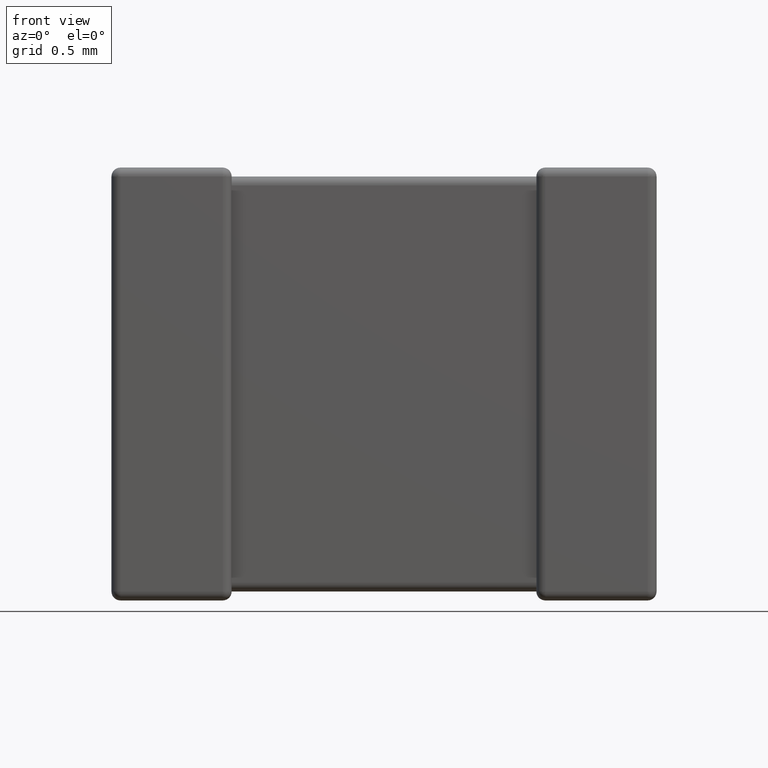
[diagram: clean part render]
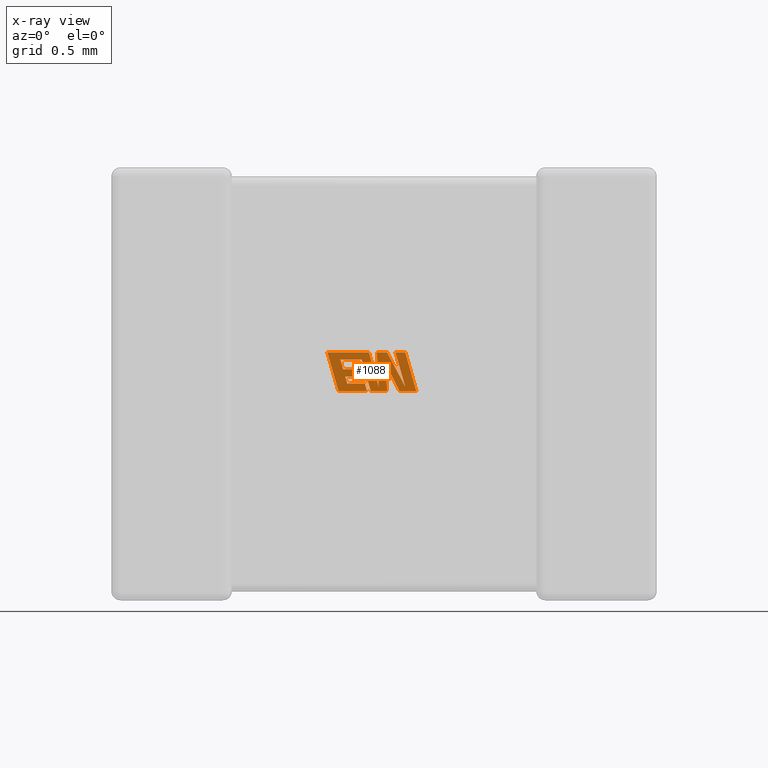
[diagram: x-ray — body ghosted, one internal face saturated and labeled with its STEP entity id]
A machine part, front view, then the same camera in x-ray: the body is ghosted and one INTERNAL B-rep face — a face not visible from any outside direction — is saturated and labeled: STEP entity #1088.
In plain terms, the highlighted planar face has unit normal (0, -1, 0).
Its self-contained STEP definition (entity closure, byte-faithful):
#14 = LINE ( 'NONE', #2497, #1206 ) ;
#46 = CARTESIAN_POINT ( 'NONE',  ( 1.719810770062254900, 1.343840000000000100, -1.393777468605939400 ) ) ;
#58 = CARTESIAN_POINT ( 'NONE',  ( 1.667068680722454400, 1.343840000000000100, -1.367376504979233200 ) ) ;
#102 = VECTOR ( 'NONE', #748, 1000.000000000000000 ) ;
#111 = DIRECTION ( 'NONE',  ( -0.05596501978068185000, 0.0000000000000000000, 0.9984327301130245800 ) ) ;
#140 = VECTOR ( 'NONE', #1395, 1000.000000000000000 ) ;
#141 = ORIENTED_EDGE ( 'NONE', *, *, #1545, .F. ) ;
#168 = DIRECTION ( 'NONE',  ( 1.000000000000000000, 0.0000000000000000000, 0.0000000000000000000 ) ) ;
#179 = EDGE_CURVE ( 'NONE', #3529, #4502, #1664, .T. ) ;
#217 = VERTEX_POINT ( 'NONE', #3510 ) ;
#225 = CARTESIAN_POINT ( 'NONE',  ( 1.719205590769774700, 1.343840000000000100, -1.153170000000000000 ) ) ;
#232 = CARTESIAN_POINT ( 'NONE',  ( 1.427963170861977500, 1.343840000000000100, -1.198945716855293900 ) ) ;
#253 = VECTOR ( 'NONE', #1440, 1000.000000000000000 ) ;
#301 = CARTESIAN_POINT ( 'NONE',  ( 1.832830620914688500, 1.343840000000000100, -1.368408049820770500 ) ) ;
#335 = EDGE_CURVE ( 'NONE', #4195, #217, #1116, .T. ) ;
#339 = EDGE_CURVE ( 'NONE', #1463, #860, #3627, .T. ) ;
#364 = VECTOR ( 'NONE', #4438, 1000.000000000000000 ) ;
#376 = ORIENTED_EDGE ( 'NONE', *, *, #4514, .F. ) ;
#408 = CARTESIAN_POINT ( 'NONE',  ( 1.901339830266763900, 1.343840000000000100, -1.393777468605939400 ) ) ;
#443 = ORIENTED_EDGE ( 'NONE', *, *, #2124, .F. ) ;
#448 = ORIENTED_EDGE ( 'NONE', *, *, #930, .F. ) ;
#480 = CARTESIAN_POINT ( 'NONE',  ( 1.445001950557935200, 1.343840000000000100, -1.258746054009087600 ) ) ;
#498 = ORIENTED_EDGE ( 'NONE', *, *, #1322, .F. ) ;
#507 = VECTOR ( 'NONE', #4196, 1000.000000000000200 ) ;
#522 = VERTEX_POINT ( 'NONE', #1533 ) ;
#537 = ORIENTED_EDGE ( 'NONE', *, *, #335, .F. ) ;
#556 = ORIENTED_EDGE ( 'NONE', *, *, #4179, .F. ) ;
#560 = LINE ( 'NONE', #595, #1511 ) ;
#564 = VERTEX_POINT ( 'NONE', #2208 ) ;
#565 = EDGE_CURVE ( 'NONE', #871, #2762, #4482, .T. ) ;
#595 = CARTESIAN_POINT ( 'NONE',  ( 1.605563734006848000, 1.343840000000000100, -1.153170000000000000 ) ) ;
#606 = CARTESIAN_POINT ( 'NONE',  ( 1.580337707463669100, 1.343840000000000100, -1.347979072396408500 ) ) ;
#658 = CARTESIAN_POINT ( 'NONE',  ( 1.548258857652406300, 1.343840000000000100, -1.258746054009087600 ) ) ;
#665 = LINE ( 'NONE', #3379, #4599 ) ;
#680 = CARTESIAN_POINT ( 'NONE',  ( 1.605563734006848000, 1.343840000000000100, -1.153170000000000000 ) ) ;
#699 = EDGE_CURVE ( 'NONE', #1910, #871, #4534, .T. ) ;
#745 = DIRECTION ( 'NONE',  ( -0.2762517575166416100, 0.0000000000000000000, 0.9610853065513833600 ) ) ;
#748 = DIRECTION ( 'NONE',  ( -1.000000000000000000, 0.0000000000000000000, 0.0000000000000000000 ) ) ;
#757 = ORIENTED_EDGE ( 'NONE', *, *, #3171, .F. ) ;
#818 = DIRECTION ( 'NONE',  ( 0.2732148821746424000, 0.0000000000000000000, -0.9619530280415443700 ) ) ;
#860 = VERTEX_POINT ( 'NONE', #3127 ) ;
#871 = VERTEX_POINT ( 'NONE', #4243 ) ;
#930 = EDGE_CURVE ( 'NONE', #951, #1783, #4279, .T. ) ;
#934 = DIRECTION ( 'NONE',  ( 0.2746459304917039400, 0.0000000000000000000, -0.9615454294334439000 ) ) ;
#951 = VERTEX_POINT ( 'NONE', #3173 ) ;
#981 = VERTEX_POINT ( 'NONE', #3204 ) ;
#995 = VERTEX_POINT ( 'NONE', #2463 ) ;
#1088 = ADVANCED_FACE ( 'NONE', ( #2949 ), #2883, .T. ) ;
#1107 = LINE ( 'NONE', #2320, #2056 ) ;
#1116 = LINE ( 'NONE', #1762, #140 ) ;
#1131 = CARTESIAN_POINT ( 'NONE',  ( 1.655061791398066800, 1.343840000000000100, -1.153170000000000000 ) ) ;
#1140 = CARTESIAN_POINT ( 'NONE',  ( 1.795811030974152000, 1.343840000000000100, -1.393777468605939400 ) ) ;
#1206 = VECTOR ( 'NONE', #745, 1000.000000000000100 ) ;
#1287 = ORIENTED_EDGE ( 'NONE', *, *, #1866, .F. ) ;
#1291 = LINE ( 'NONE', #3759, #2736 ) ;
#1322 = EDGE_CURVE ( 'NONE', #4502, #995, #1107, .T. ) ;
#1383 = DIRECTION ( 'NONE',  ( 0.2793947940878429000, 0.0000000000000000000, -0.9601763114327556100 ) ) ;
#1395 = DIRECTION ( 'NONE',  ( -1.000000000000000000, 0.0000000000000000000, 0.0000000000000000000 ) ) ;
#1406 = VECTOR ( 'NONE', #1600, 1000.000000000000000 ) ;
#1427 = DIRECTION ( 'NONE',  ( 0.05375259206908434400, 0.0000000000000000000, -0.9985542843760946100 ) ) ;
#1440 = DIRECTION ( 'NONE',  ( 1.000000000000000000, 0.0000000000000000000, 0.0000000000000000000 ) ) ;
#1448 = ORIENTED_EDGE ( 'NONE', *, *, #2842, .F. ) ;
#1463 = VERTEX_POINT ( 'NONE', #3227 ) ;
#1497 = DIRECTION ( 'NONE',  ( 0.4668459304955247000, 0.0000000000000000000, -0.8843386665637592600 ) ) ;
#1500 = VERTEX_POINT ( 'NONE', #2127 ) ;
#1511 = VECTOR ( 'NONE', #4181, 1000.000000000000100 ) ;
#1533 = CARTESIAN_POINT ( 'NONE',  ( 1.771021331891165800, 1.343840000000000100, -1.153170000000000000 ) ) ;
#1543 = CARTESIAN_POINT ( 'NONE',  ( 1.667068680722454400, 1.343840000000000100, -1.367376504979233200 ) ) ;
#1545 = EDGE_CURVE ( 'NONE', #217, #564, #14, .T. ) ;
#1593 = VECTOR ( 'NONE', #1497, 1000.000000000000000 ) ;
#1600 = DIRECTION ( 'NONE',  ( 1.000000000000000000, 0.0000000000000000000, 0.0000000000000000000 ) ) ;
#1617 = LINE ( 'NONE', #3550, #4156 ) ;
#1627 = CARTESIAN_POINT ( 'NONE',  ( 1.593345414762694200, 1.343840000000000100, -1.393777468605939400 ) ) ;
#1654 = ORIENTED_EDGE ( 'NONE', *, *, #3311, .F. ) ;
#1664 = LINE ( 'NONE', #480, #1406 ) ;
#1670 = CARTESIAN_POINT ( 'NONE',  ( 1.832163408931786000, 1.343840000000000100, -1.153170000000000000 ) ) ;
#1680 = DIRECTION ( 'NONE',  ( 0.2740217765953990600, 0.0000000000000000000, -0.9617234872620618000 ) ) ;
#1711 = CARTESIAN_POINT ( 'NONE',  ( 1.457692146891389700, 1.343840000000000100, -1.303226121278632900 ) ) ;
#1730 = ORIENTED_EDGE ( 'NONE', *, *, #699, .F. ) ;
#1762 = CARTESIAN_POINT ( 'NONE',  ( 1.719810770062254900, 1.343840000000000100, -1.393777468605939400 ) ) ;
#1772 = AXIS2_PLACEMENT_3D ( 'NONE', #1813, #2191, #1859 ) ;
#1783 = VERTEX_POINT ( 'NONE', #2630 ) ;
#1813 = CARTESIAN_POINT ( 'NONE',  ( -0.0002255481140239681100, 1.343839999999999700, -0.3440333437732227600 ) ) ;
#1859 = DIRECTION ( 'NONE',  ( 0.0000000000000000000, 0.0000000000000000000, -1.000000000000000000 ) ) ;
#1866 = EDGE_CURVE ( 'NONE', #522, #3994, #2928, .T. ) ;
#1910 = VERTEX_POINT ( 'NONE', #408 ) ;
#1991 = EDGE_CURVE ( 'NONE', #2622, #3505, #2103, .T. ) ;
#2016 = LINE ( 'NONE', #1131, #3355 ) ;
#2056 = VECTOR ( 'NONE', #934, 1000.000000000000100 ) ;
#2099 = VECTOR ( 'NONE', #3700, 1000.000000000000000 ) ;
#2103 = LINE ( 'NONE', #2545, #1593 ) ;
#2124 = EDGE_CURVE ( 'NONE', #995, #1463, #4062, .T. ) ;
#2127 = CARTESIAN_POINT ( 'NONE',  ( 1.655061791398066800, 1.343840000000000100, -1.153170000000000000 ) ) ;
#2185 = VERTEX_POINT ( 'NONE', #606 ) ;
#2191 = DIRECTION ( 'NONE',  ( 0.0000000000000000000, -1.000000000000000000, 0.0000000000000000000 ) ) ;
#2208 = CARTESIAN_POINT ( 'NONE',  ( 1.561342650527707900, 1.343840000000000100, -1.198945716855293900 ) ) ;
#2215 = CARTESIAN_POINT ( 'NONE',  ( 1.580337707463669100, 1.343840000000000100, -1.347979072396408500 ) ) ;
#2320 = CARTESIAN_POINT ( 'NONE',  ( 1.548258857652406300, 1.343840000000000100, -1.258746054009087600 ) ) ;
#2387 = VERTEX_POINT ( 'NONE', #4516 ) ;
#2428 = EDGE_CURVE ( 'NONE', #981, #951, #3758, .T. ) ;
#2432 = CARTESIAN_POINT ( 'NONE',  ( 1.445001950557935200, 1.343840000000000100, -1.258746054009087600 ) ) ;
#2459 = VECTOR ( 'NONE', #2501, 1000.000000000000000 ) ;
#2463 = CARTESIAN_POINT ( 'NONE',  ( 1.560963685827582600, 1.343840000000000100, -1.303226121278632900 ) ) ;
#2481 = LINE ( 'NONE', #1670, #507 ) ;
#2490 = ORIENTED_EDGE ( 'NONE', *, *, #3797, .F. ) ;
#2497 = CARTESIAN_POINT ( 'NONE',  ( 1.617344561569602300, 1.343840000000000100, -1.393777468605939400 ) ) ;
#2501 = DIRECTION ( 'NONE',  ( -0.2765379750249969400, 0.0000000000000000000, 0.9610029908221275900 ) ) ;
#2504 = LINE ( 'NONE', #1543, #4144 ) ;
#2520 = DIRECTION ( 'NONE',  ( 1.000000000000000000, 0.0000000000000000000, 0.0000000000000000000 ) ) ;
#2545 = CARTESIAN_POINT ( 'NONE',  ( 1.719205590769774700, 1.343840000000000100, -1.153170000000000000 ) ) ;
#2590 = EDGE_CURVE ( 'NONE', #3994, #1910, #2481, .T. ) ;
#2622 = VERTEX_POINT ( 'NONE', #225 ) ;
#2625 = DIRECTION ( 'NONE',  ( -1.000000000000000000, 0.0000000000000000000, 0.0000000000000000000 ) ) ;
#2630 = CARTESIAN_POINT ( 'NONE',  ( 1.346355536600579700, 1.343840000000000100, -1.153169999999999600 ) ) ;
#2736 = VECTOR ( 'NONE', #3818, 1000.000000000000100 ) ;
#2762 = VERTEX_POINT ( 'NONE', #3937 ) ;
#2765 = ORIENTED_EDGE ( 'NONE', *, *, #4015, .F. ) ;
#2784 = ORIENTED_EDGE ( 'NONE', *, *, #2590, .F. ) ;
#2842 = EDGE_CURVE ( 'NONE', #564, #2387, #3931, .T. ) ;
#2872 = CARTESIAN_POINT ( 'NONE',  ( 1.561342650527707900, 1.343840000000000100, -1.198945716855293900 ) ) ;
#2882 = ORIENTED_EDGE ( 'NONE', *, *, #179, .F. ) ;
#2883 = PLANE ( 'NONE',  #1772 ) ;
#2928 = LINE ( 'NONE', #3934, #3716 ) ;
#2949 = FACE_OUTER_BOUND ( 'NONE', #3742, .T. ) ;
#2952 = VECTOR ( 'NONE', #818, 1000.000000000000000 ) ;
#3119 = CARTESIAN_POINT ( 'NONE',  ( 1.832163408931786000, 1.343840000000000100, -1.153170000000000000 ) ) ;
#3127 = CARTESIAN_POINT ( 'NONE',  ( 1.470714486032121300, 1.343840000000000100, -1.347979072396408500 ) ) ;
#3171 = EDGE_CURVE ( 'NONE', #4446, #4159, #560, .T. ) ;
#3173 = CARTESIAN_POINT ( 'NONE',  ( 1.415592680271959200, 1.343840000000000100, -1.393777468605939400 ) ) ;
#3204 = CARTESIAN_POINT ( 'NONE',  ( 1.593345414762694200, 1.343840000000000100, -1.393777468605939400 ) ) ;
#3227 = CARTESIAN_POINT ( 'NONE',  ( 1.457692146891389700, 1.343840000000000100, -1.303226121278632900 ) ) ;
#3269 = ORIENTED_EDGE ( 'NONE', *, *, #3551, .F. ) ;
#3293 = LINE ( 'NONE', #232, #3350 ) ;
#3311 = EDGE_CURVE ( 'NONE', #3505, #522, #1291, .T. ) ;
#3339 = LINE ( 'NONE', #4310, #253 ) ;
#3341 = EDGE_CURVE ( 'NONE', #2387, #3529, #3293, .T. ) ;
#3350 = VECTOR ( 'NONE', #1680, 1000.000000000000200 ) ;
#3355 = VECTOR ( 'NONE', #168, 1000.000000000000000 ) ;
#3372 = VECTOR ( 'NONE', #2625, 1000.000000000000000 ) ;
#3379 = CARTESIAN_POINT ( 'NONE',  ( 1.562736333260703800, 1.343840000000000100, -1.153169999999999600 ) ) ;
#3505 = VERTEX_POINT ( 'NONE', #301 ) ;
#3510 = CARTESIAN_POINT ( 'NONE',  ( 1.617344561569602300, 1.343840000000000100, -1.393777468605939400 ) ) ;
#3529 = VERTEX_POINT ( 'NONE', #2432 ) ;
#3548 = CARTESIAN_POINT ( 'NONE',  ( 1.415592680271959200, 1.343840000000000100, -1.393777468605939400 ) ) ;
#3550 = CARTESIAN_POINT ( 'NONE',  ( 1.710557694836944100, 1.343840000000000100, -1.221884401607177500 ) ) ;
#3551 = EDGE_CURVE ( 'NONE', #2762, #4195, #1617, .T. ) ;
#3562 = VECTOR ( 'NONE', #4457, 1000.000000000000000 ) ;
#3627 = LINE ( 'NONE', #1711, #4647 ) ;
#3666 = ORIENTED_EDGE ( 'NONE', *, *, #565, .F. ) ;
#3700 = DIRECTION ( 'NONE',  ( -1.000000000000000000, 0.0000000000000000000, 0.0000000000000000000 ) ) ;
#3701 = EDGE_CURVE ( 'NONE', #4159, #1500, #2504, .T. ) ;
#3716 = VECTOR ( 'NONE', #2520, 1000.000000000000000 ) ;
#3742 = EDGE_LOOP ( 'NONE', ( #1730, #2784, #1287, #1654, #4262, #2765, #4614, #757, #2490, #448, #4027, #556, #376, #4595, #443, #498, #2882, #4552, #1448, #141, #537, #3269, #3666 ) ) ;
#3758 = LINE ( 'NONE', #1627, #3372 ) ;
#3759 = CARTESIAN_POINT ( 'NONE',  ( 1.832830620914688500, 1.343840000000000100, -1.368408049820770500 ) ) ;
#3797 = EDGE_CURVE ( 'NONE', #1783, #4446, #665, .T. ) ;
#3818 = DIRECTION ( 'NONE',  ( -0.2760118818968593800, 0.0000000000000000000, 0.9611542233438680200 ) ) ;
#3914 = LINE ( 'NONE', #2215, #2952 ) ;
#3931 = LINE ( 'NONE', #2872, #102 ) ;
#3934 = CARTESIAN_POINT ( 'NONE',  ( 1.771021331891165800, 1.343840000000000100, -1.153170000000000000 ) ) ;
#3937 = CARTESIAN_POINT ( 'NONE',  ( 1.710557694836944100, 1.343840000000000100, -1.221884401607177500 ) ) ;
#3994 = VERTEX_POINT ( 'NONE', #3119 ) ;
#4015 = EDGE_CURVE ( 'NONE', #1500, #2622, #2016, .T. ) ;
#4027 = ORIENTED_EDGE ( 'NONE', *, *, #2428, .F. ) ;
#4062 = LINE ( 'NONE', #4388, #2099 ) ;
#4118 = CARTESIAN_POINT ( 'NONE',  ( 1.901339830266763900, 1.343840000000000100, -1.393777468605939400 ) ) ;
#4144 = VECTOR ( 'NONE', #111, 1000.000000000000100 ) ;
#4156 = VECTOR ( 'NONE', #1427, 1000.000000000000200 ) ;
#4159 = VERTEX_POINT ( 'NONE', #58 ) ;
#4179 = EDGE_CURVE ( 'NONE', #2185, #981, #3914, .T. ) ;
#4181 = DIRECTION ( 'NONE',  ( 0.2759782365590801600, 0.0000000000000000000, -0.9611638845408936300 ) ) ;
#4195 = VERTEX_POINT ( 'NONE', #46 ) ;
#4196 = DIRECTION ( 'NONE',  ( 0.2763139702539146300, 0.0000000000000000000, -0.9610674221107063900 ) ) ;
#4243 = CARTESIAN_POINT ( 'NONE',  ( 1.795811030974152000, 1.343840000000000100, -1.393777468605939400 ) ) ;
#4262 = ORIENTED_EDGE ( 'NONE', *, *, #1991, .F. ) ;
#4279 = LINE ( 'NONE', #3548, #2459 ) ;
#4310 = CARTESIAN_POINT ( 'NONE',  ( 1.470714486032121300, 1.343840000000000100, -1.347979072396408500 ) ) ;
#4388 = CARTESIAN_POINT ( 'NONE',  ( 1.560963685827582600, 1.343840000000000100, -1.303226121278632900 ) ) ;
#4438 = DIRECTION ( 'NONE',  ( -0.4443210308329503800, 0.0000000000000000000, 0.8958676361826809500 ) ) ;
#4446 = VERTEX_POINT ( 'NONE', #680 ) ;
#4457 = DIRECTION ( 'NONE',  ( -1.000000000000000000, 0.0000000000000000000, 0.0000000000000000000 ) ) ;
#4482 = LINE ( 'NONE', #1140, #364 ) ;
#4497 = DIRECTION ( 'NONE',  ( 1.000000000000000000, 0.0000000000000000000, -2.459231407381525800E-015 ) ) ;
#4502 = VERTEX_POINT ( 'NONE', #658 ) ;
#4514 = EDGE_CURVE ( 'NONE', #860, #2185, #3339, .T. ) ;
#4516 = CARTESIAN_POINT ( 'NONE',  ( 1.427963170861977500, 1.343840000000000100, -1.198945716855293900 ) ) ;
#4534 = LINE ( 'NONE', #4118, #3562 ) ;
#4552 = ORIENTED_EDGE ( 'NONE', *, *, #3341, .F. ) ;
#4595 = ORIENTED_EDGE ( 'NONE', *, *, #339, .F. ) ;
#4599 = VECTOR ( 'NONE', #4497, 1000.000000000000000 ) ;
#4614 = ORIENTED_EDGE ( 'NONE', *, *, #3701, .F. ) ;
#4647 = VECTOR ( 'NONE', #1383, 999.9999999999998900 ) ;